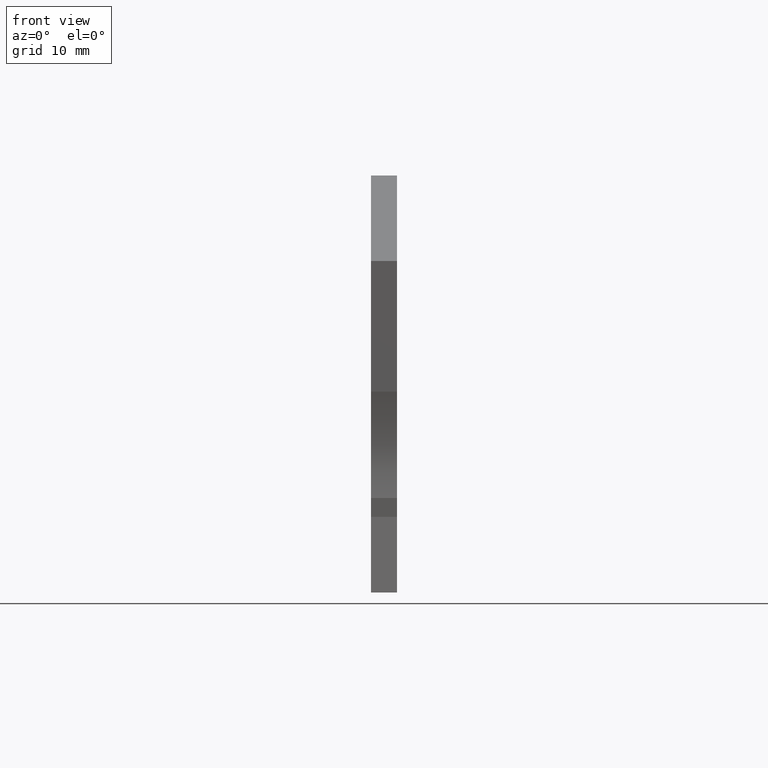
[diagram: clean part render]
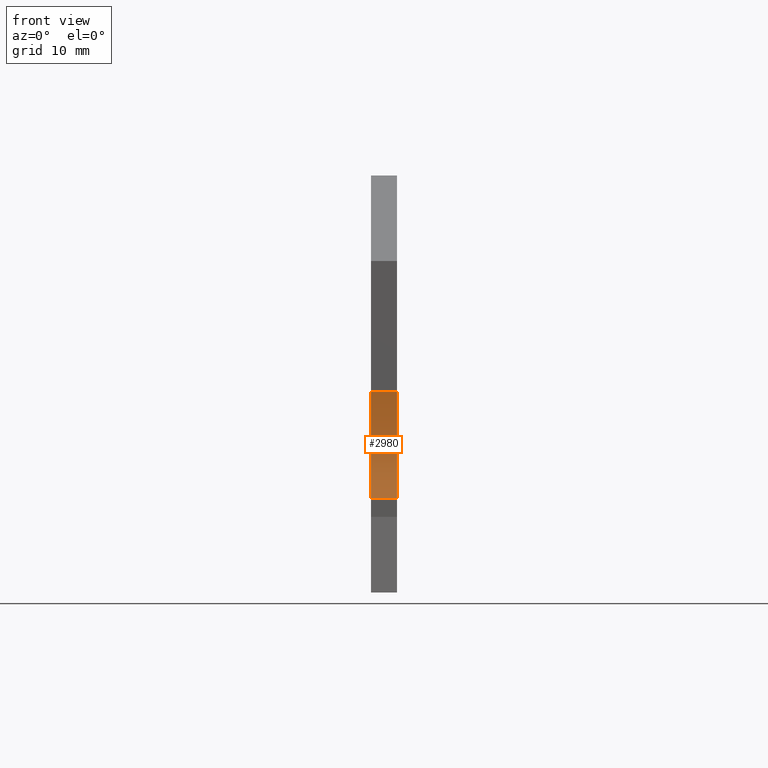
[diagram: same view with one face highlighted and labeled with its STEP entity id]
A machine part, front view. The second image highlights one B-rep face of the part: STEP entity #2980.
In plain terms, the highlighted cylindrical surface (partial cylindrical patch) has radius 15 mm, axis along (-1, 0, -0).
Its self-contained STEP definition (entity closure, byte-faithful):
#520=CARTESIAN_POINT('',(-42.9,8.21722499999915,0.));
#530=VERTEX_POINT('',#520);
#560=CARTESIAN_POINT('',(-57.2090880212678,12.7172249999982,0.));
#570=DIRECTION('',(0.,0.,1.));
#580=DIRECTION('',(1.,0.,0.));
#590=AXIS2_PLACEMENT_3D('',#560,#570,#580);
#600=CIRCLE('',#590,15.0000000000127);
#610=CARTESIAN_POINT('',(-42.9,17.2172249999973,0.));
#620=VERTEX_POINT('',#610);
#630=EDGE_CURVE('',#530,#620,#600,.T.);
#2670=CARTESIAN_POINT('',(-57.2090880212678,12.7172249999982,
-0.799999999999997));
#2680=DIRECTION('',(0.,0.,-1.));
#2690=DIRECTION('',(1.,0.,0.));
#2700=AXIS2_PLACEMENT_3D('',#2670,#2680,#2690);
#2710=CYLINDRICAL_SURFACE('',#2700,15.0000000000127);
#2720=CARTESIAN_POINT('',(-42.9,17.2172249999973,-0.799999999999997));
#2730=DIRECTION('',(0.,0.,-1.));
#2740=VECTOR('',#2730,1.);
#2750=LINE('',#2720,#2740);
#2760=CARTESIAN_POINT('',(-42.9,17.2172249999973,-2.2));
#2770=VERTEX_POINT('',#2760);
#2780=EDGE_CURVE('',#620,#2770,#2750,.T.);
#2790=ORIENTED_EDGE('',*,*,#2780,.T.);
#2800=ORIENTED_EDGE('',*,*,#630,.T.);
#2810=CARTESIAN_POINT('',(-42.9,8.21722499999915,-0.799999999999997));
#2820=DIRECTION('',(0.,0.,1.));
#2830=VECTOR('',#2820,1.);
#2840=LINE('',#2810,#2830);
#2850=CARTESIAN_POINT('',(-42.9,8.21722499999913,-2.2));
#2860=VERTEX_POINT('',#2850);
#2870=EDGE_CURVE('',#2860,#530,#2840,.T.);
#2880=ORIENTED_EDGE('',*,*,#2870,.T.);
#2890=CARTESIAN_POINT('',(-57.2090880212678,12.7172249999982,-2.2));
#2900=DIRECTION('',(0.,0.,1.));
#2910=DIRECTION('',(1.,0.,0.));
#2920=AXIS2_PLACEMENT_3D('',#2890,#2900,#2910);
#2930=CIRCLE('',#2920,15.0000000000127);
#2940=EDGE_CURVE('',#2860,#2770,#2930,.T.);
#2950=ORIENTED_EDGE('',*,*,#2940,.F.);
#2960=EDGE_LOOP('',(#2950,#2880,#2800,#2790));
#2970=FACE_OUTER_BOUND('',#2960,.T.);
#2980=ADVANCED_FACE('',(#2970),#2710,.F.);